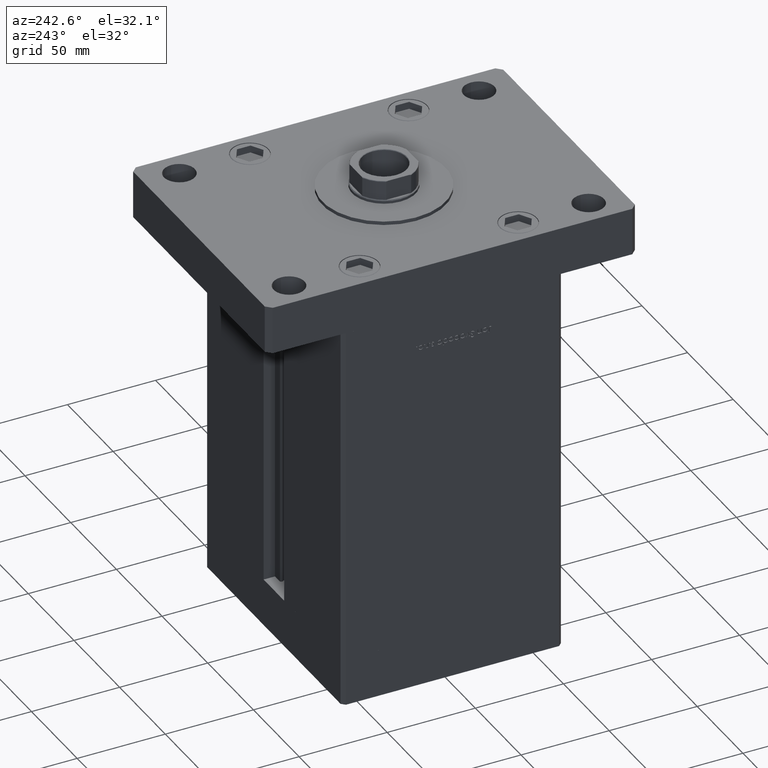
[diagram: clean part render]
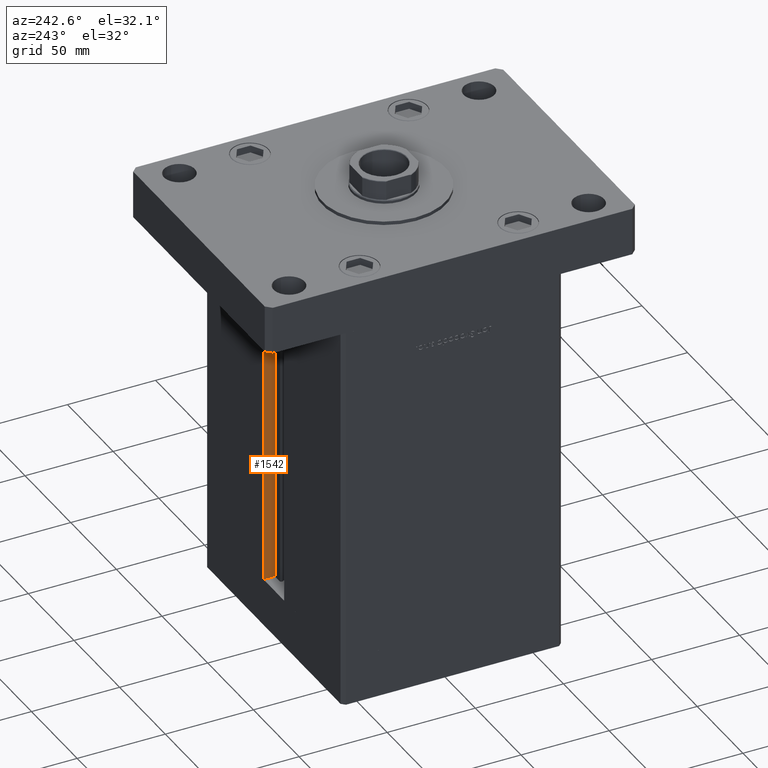
[diagram: same view with one face highlighted and labeled with its STEP entity id]
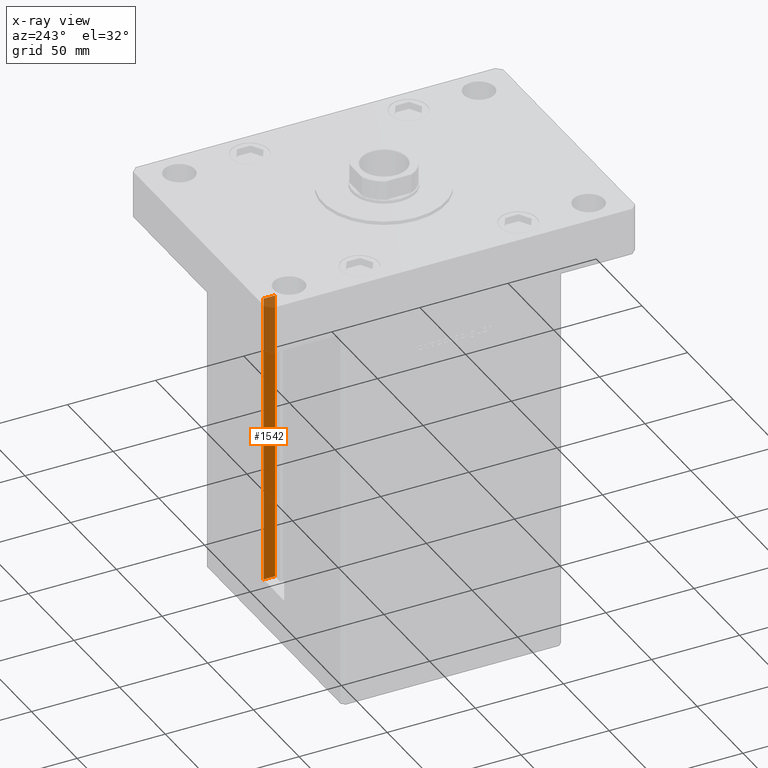
[diagram: x-ray of the same camera — body ghosted, the highlighted face saturated]
A machine part, auxiliary view. The second image highlights one B-rep face of the part: STEP entity #1542.
The next image is the same camera in x-ray: the body ghosted, the highlighted face saturated — about 20% of this face is hidden behind the body in this view.
In plain terms, the highlighted planar face has unit normal (1, 0, 0).
Its self-contained STEP definition (entity closure, byte-faithful):
#870 = LINE ( 'NONE', #50427, #23577 ) ;
#1542 = ADVANCED_FACE ( 'NONE', ( #24211 ), #36926, .F. ) ;
#2589 = EDGE_CURVE ( 'NONE', #43878, #14522, #47709, .T. ) ;
#5429 = ORIENTED_EDGE ( 'NONE', *, *, #2589, .F. ) ;
#6806 = ORIENTED_EDGE ( 'NONE', *, *, #42707, .F. ) ;
#9544 = CARTESIAN_POINT ( 'NONE',  ( 11.24999999999999112, 62.49999999999999289, 167.0000000000000000 ) ) ;
#11807 = VERTEX_POINT ( 'NONE', #22093 ) ;
#14522 = VERTEX_POINT ( 'NONE', #51609 ) ;
#19874 = CARTESIAN_POINT ( 'NONE',  ( 11.25000000000000178, 55.99999999999999289, 0.000000000000000000 ) ) ;
#20768 = LINE ( 'NONE', #32148, #51462 ) ;
#22093 = CARTESIAN_POINT ( 'NONE',  ( 11.25000000000000178, 55.99999999999999289, 0.000000000000000000 ) ) ;
#23577 = VECTOR ( 'NONE', #41506, 1000.000000000000000 ) ;
#24211 = FACE_OUTER_BOUND ( 'NONE', #51103, .T. ) ;
#27852 = VECTOR ( 'NONE', #48304, 1000.000000000000000 ) ;
#31440 = CARTESIAN_POINT ( 'NONE',  ( 11.25000000000000178, 0.000000000000000000, 167.0000000000000000 ) ) ;
#32148 = CARTESIAN_POINT ( 'NONE',  ( 11.25000000000000178, 62.49999999999999289, 0.000000000000000000 ) ) ;
#36926 = PLANE ( 'NONE',  #51484 ) ;
#39385 = ORIENTED_EDGE ( 'NONE', *, *, #49242, .F. ) ;
#39507 = EDGE_CURVE ( 'NONE', #11807, #14522, #870, .T. ) ;
#40725 = CARTESIAN_POINT ( 'NONE',  ( 11.25000000000000178, 55.99999999999999289, 0.000000000000000000 ) ) ;
#40814 = CARTESIAN_POINT ( 'NONE',  ( 11.25000000000000178, 62.49999999999999289, 0.000000000000000000 ) ) ;
#40991 = DIRECTION ( 'NONE',  ( 0.000000000000000000, 0.000000000000000000, -1.000000000000000000 ) ) ;
#41506 = DIRECTION ( 'NONE',  ( -0.000000000000000000, -0.000000000000000000, 1.000000000000000000 ) ) ;
#42707 = EDGE_CURVE ( 'NONE', #11807, #52564, #44781, .T. ) ;
#43878 = VERTEX_POINT ( 'NONE', #9544 ) ;
#44781 = LINE ( 'NONE', #19874, #27852 ) ;
#45396 = VECTOR ( 'NONE', #52055, 1000.000000000000000 ) ;
#47709 = LINE ( 'NONE', #31440, #45396 ) ;
#48304 = DIRECTION ( 'NONE',  ( 0.000000000000000000, 1.000000000000000000, 0.000000000000000000 ) ) ;
#49214 = DIRECTION ( 'NONE',  ( -0.000000000000000000, -0.000000000000000000, 1.000000000000000000 ) ) ;
#49242 = EDGE_CURVE ( 'NONE', #52564, #43878, #20768, .T. ) ;
#50124 = ORIENTED_EDGE ( 'NONE', *, *, #39507, .T. ) ;
#50427 = CARTESIAN_POINT ( 'NONE',  ( 11.25000000000000178, 55.99999999999999289, 0.000000000000000000 ) ) ;
#51103 = EDGE_LOOP ( 'NONE', ( #39385, #6806, #50124, #5429 ) ) ;
#51462 = VECTOR ( 'NONE', #49214, 1000.000000000000000 ) ;
#51484 = AXIS2_PLACEMENT_3D ( 'NONE', #40725, #52406, #40991 ) ;
#51609 = CARTESIAN_POINT ( 'NONE',  ( 11.25000000000000178, 55.99999999999999289, 166.9999999999999432 ) ) ;
#52055 = DIRECTION ( 'NONE',  ( -0.000000000000000000, -1.000000000000000000, 0.000000000000000000 ) ) ;
#52406 = DIRECTION ( 'NONE',  ( 1.000000000000000000, -0.000000000000000000, 0.000000000000000000 ) ) ;
#52564 = VERTEX_POINT ( 'NONE', #40814 ) ;